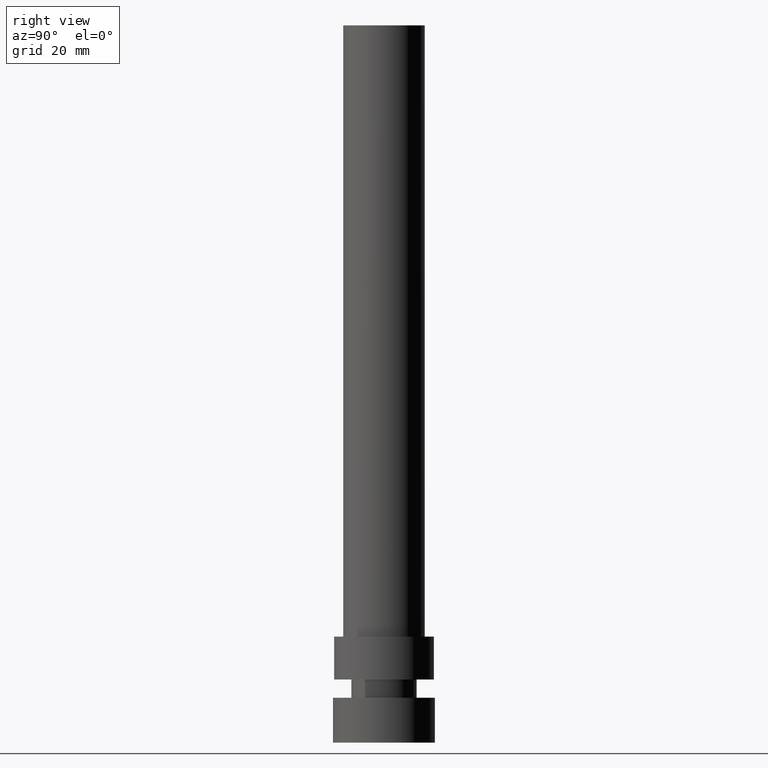
[diagram: clean part render]
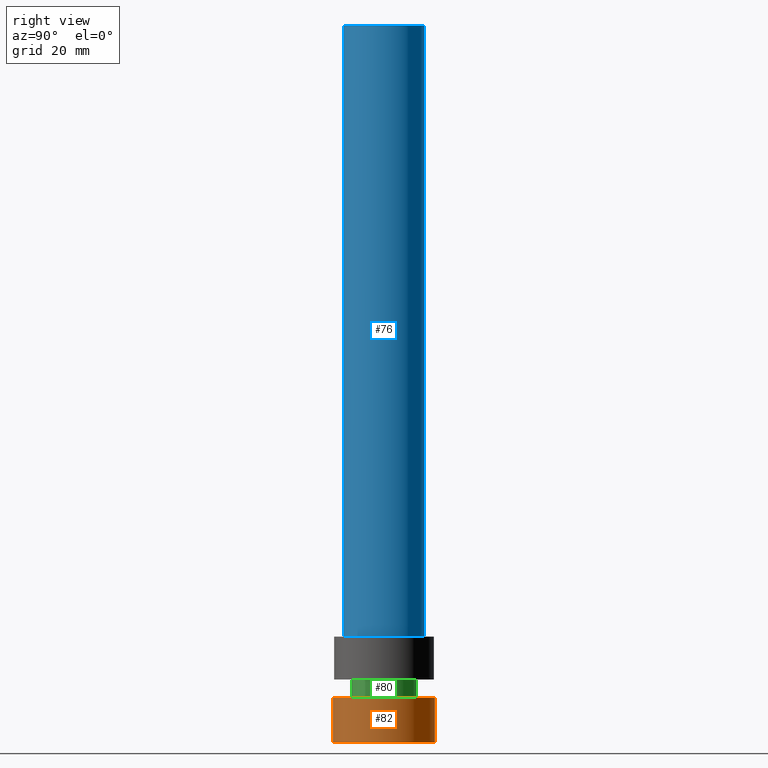
[diagram: same view with three faces highlighted in distinct colors, each labeled with its STEP entity id]
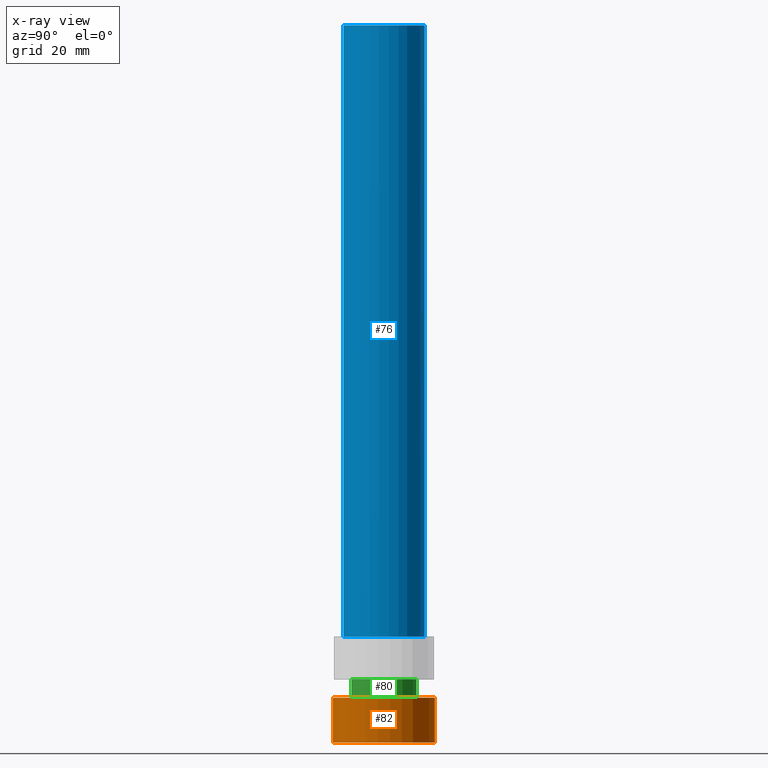
[diagram: x-ray of the same camera — body ghosted, the three highlighted faces saturated]
A machine part, right view with three faces highlighted in distinct colors.
The next image is the same camera in x-ray (body ghosted, the three faces saturated) — at least one of them is partly hidden behind the body in this view.
Their STEP definitions:

[orange] entity #82 — the highlighted cylindrical surface (bore or boss wall) has radius 12.5 mm, axis along (-0, -0, 1).
#82=ADVANCED_FACE('',(#105,#106),#107,.T.);
#105=FACE_BOUND('',#130,.T.);
#106=FACE_BOUND('',#131,.T.);
#107=CYLINDRICAL_SURFACE('',#132,12.5);
#130=EDGE_LOOP('',(#169));
#131=EDGE_LOOP('',(#170));
#132=AXIS2_PLACEMENT_3D('',#171,#172,#173);
#169=ORIENTED_EDGE('',*,*,#185,.F.);
#170=ORIENTED_EDGE('',*,*,#184,.T.);
#171=CARTESIAN_POINT('',(-3.36777869765523E-016,-6.73555739531043E-016,5.5));
#172=DIRECTION('',(-6.12323399573677E-017,-1.22464679914735E-016,1.0));
#173=DIRECTION('',(-1.23259516440783E-032,1.0,1.22464679914735E-016));
#184=EDGE_CURVE('',#198,#198,#199,.T.);
#185=EDGE_CURVE('',#200,#200,#201,.T.);
#198=VERTEX_POINT('',#214);
#199=CIRCLE('',#215,12.5);
#200=VERTEX_POINT('',#216);
#201=CIRCLE('',#217,12.5);
#214=CARTESIAN_POINT('',(-6.73555739531045E-016,12.5,11.0));
#215=AXIS2_PLACEMENT_3D('',#236,#237,#238);
#216=CARTESIAN_POINT('',(0.0,12.5,0.0));
#217=AXIS2_PLACEMENT_3D('',#239,#240,#241);
#236=CARTESIAN_POINT('',(-6.73555739531045E-016,-1.34711147906209E-015,11.0));
#237=DIRECTION('',(6.12323399573677E-017,1.22464679914735E-016,-1.0));
#238=DIRECTION('',(-1.23259516440783E-032,1.0,1.22464679914735E-016));
#239=CARTESIAN_POINT('',(0.0,0.0,0.0));
#240=DIRECTION('',(6.12323399573677E-017,1.22464679914735E-016,-1.0));
#241=DIRECTION('',(-1.23259516440783E-032,1.0,1.22464679914735E-016));

[blue] entity #76 — the highlighted cylindrical surface (bore or boss wall) has radius 10 mm, axis along (-0, -0, 1).
#76=ADVANCED_FACE('',(#87,#88),#89,.T.);
#87=FACE_BOUND('',#112,.T.);
#88=FACE_BOUND('',#113,.T.);
#89=CYLINDRICAL_SURFACE('',#114,10.0);
#112=EDGE_LOOP('',(#139));
#113=EDGE_LOOP('',(#140));
#114=AXIS2_PLACEMENT_3D('',#141,#142,#143);
#139=ORIENTED_EDGE('',*,*,#179,.F.);
#140=ORIENTED_EDGE('',*,*,#178,.T.);
#141=CARTESIAN_POINT('',(-6.18446633569413E-015,-1.23689326713883E-014,101.0));
#142=DIRECTION('',(-6.12323399573677E-017,-1.22464679914735E-016,1.0));
#143=DIRECTION('',(-1.23259516440783E-032,1.0,1.22464679914735E-016));
#178=EDGE_CURVE('',#186,#186,#187,.T.);
#179=EDGE_CURVE('',#188,#188,#189,.T.);
#186=VERTEX_POINT('',#202);
#187=CIRCLE('',#203,10.0);
#188=VERTEX_POINT('',#204);
#189=CIRCLE('',#205,10.0);
#202=CARTESIAN_POINT('',(-1.07768918324967E-014,9.99999999999998,176.0));
#203=AXIS2_PLACEMENT_3D('',#218,#219,#220);
#204=CARTESIAN_POINT('',(-1.59204083889156E-015,10.0,26.0));
#205=AXIS2_PLACEMENT_3D('',#221,#222,#223);
#218=CARTESIAN_POINT('',(-1.07768918324967E-014,-2.15537836649934E-014,176.0));
#219=DIRECTION('',(6.12323399573677E-017,1.22464679914735E-016,-1.0));
#220=DIRECTION('',(-1.23259516440783E-032,1.0,1.22464679914735E-016));
#221=CARTESIAN_POINT('',(-1.59204083889156E-015,-3.18408167778312E-015,26.0));
#222=DIRECTION('',(6.12323399573677E-017,1.22464679914735E-016,-1.0));
#223=DIRECTION('',(-1.23259516440783E-032,1.0,1.22464679914735E-016));

[green] entity #80 — the highlighted cylindrical surface (bore or boss wall) has radius 8 mm, axis along (-0, -0, 1).
#80=ADVANCED_FACE('',(#99,#100),#101,.T.);
#99=FACE_BOUND('',#124,.T.);
#100=FACE_BOUND('',#125,.T.);
#101=CYLINDRICAL_SURFACE('',#126,8.0);
#124=EDGE_LOOP('',(#159));
#125=EDGE_LOOP('',(#160));
#126=AXIS2_PLACEMENT_3D('',#161,#162,#163);
#159=ORIENTED_EDGE('',*,*,#183,.F.);
#160=ORIENTED_EDGE('',*,*,#182,.T.);
#161=CARTESIAN_POINT('',(-8.11328504435122E-016,-1.62265700887024E-015,13.25));
#162=DIRECTION('',(-6.12323399573677E-017,-1.22464679914735E-016,1.0));
#163=DIRECTION('',(-1.23259516440783E-032,1.0,1.22464679914735E-016));
#182=EDGE_CURVE('',#194,#194,#195,.T.);
#183=EDGE_CURVE('',#196,#196,#197,.T.);
#194=VERTEX_POINT('',#210);
#195=CIRCLE('',#211,8.0);
#196=VERTEX_POINT('',#212);
#197=CIRCLE('',#213,8.0);
#210=CARTESIAN_POINT('',(-9.49101269339199E-016,8.0,15.5));
#211=AXIS2_PLACEMENT_3D('',#230,#231,#232);
#212=CARTESIAN_POINT('',(-6.73555739531045E-016,8.0,11.0));
#213=AXIS2_PLACEMENT_3D('',#233,#234,#235);
#230=CARTESIAN_POINT('',(-9.49101269339199E-016,-1.89820253867839E-015,15.5));
#231=DIRECTION('',(6.12323399573677E-017,1.22464679914735E-016,-1.0));
#232=DIRECTION('',(-1.23259516440783E-032,1.0,1.22464679914735E-016));
#233=CARTESIAN_POINT('',(-6.73555739531045E-016,-1.34711147906209E-015,11.0));
#234=DIRECTION('',(6.12323399573677E-017,1.22464679914735E-016,-1.0));
#235=DIRECTION('',(-1.23259516440783E-032,1.0,1.22464679914735E-016));